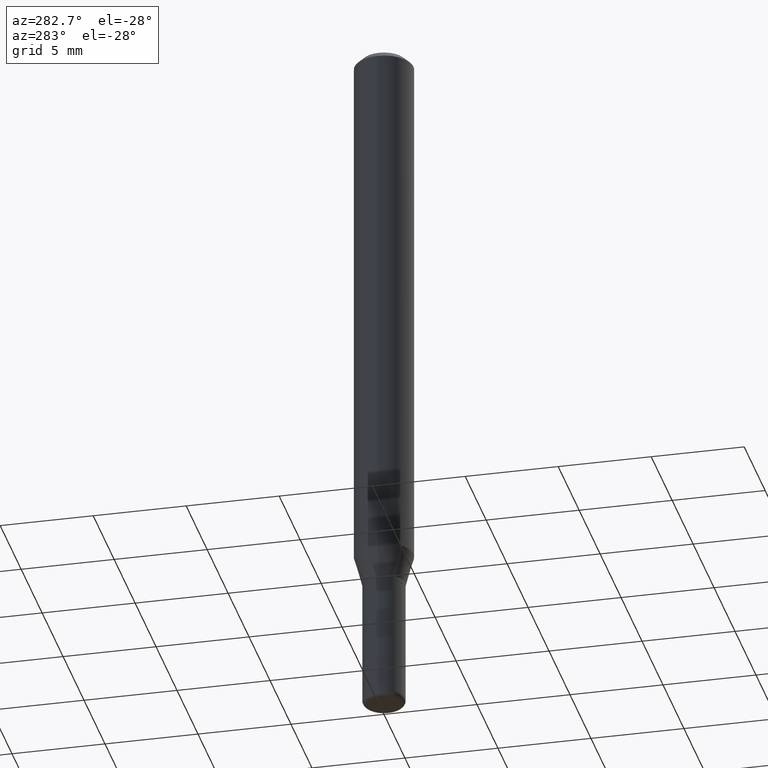
[diagram: clean part render]
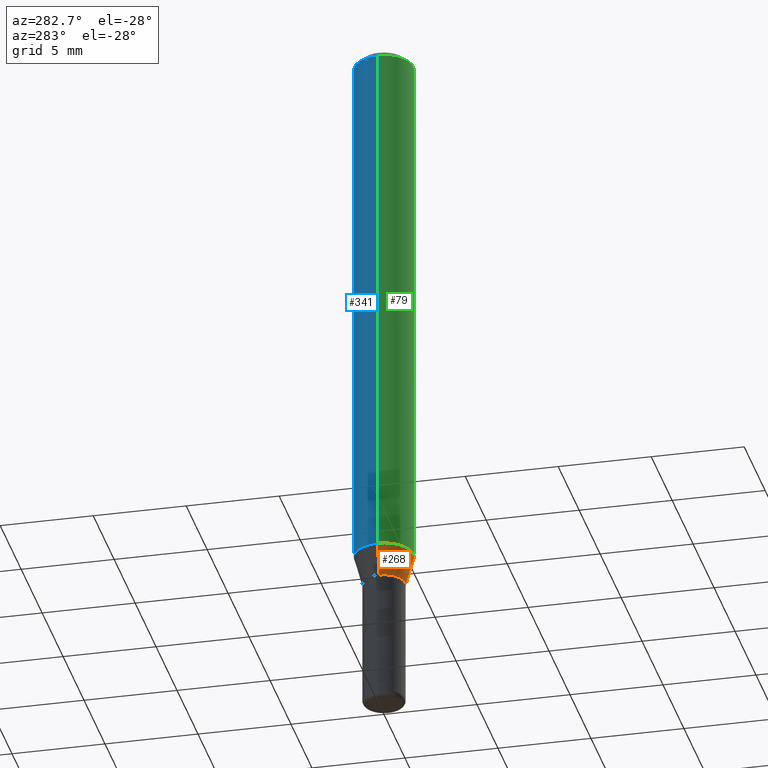
[diagram: same view with three faces highlighted in distinct colors, each labeled with its STEP entity id]
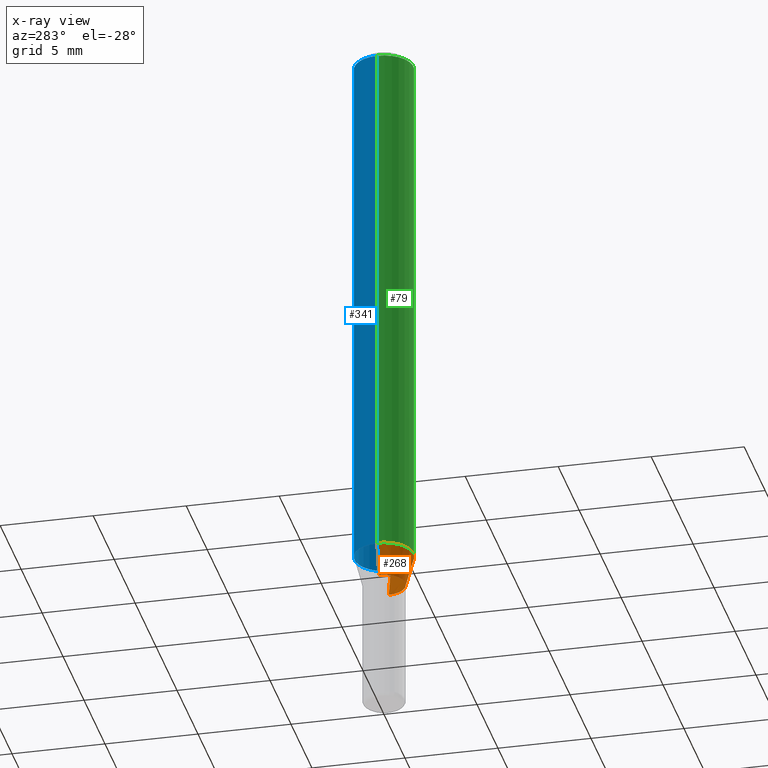
[diagram: x-ray of the same camera — body ghosted, the three highlighted faces saturated]
A machine part, auxiliary view with three faces highlighted in distinct colors.
The next image is the same camera in x-ray (body ghosted, the three faces saturated) — at least one of them is partly hidden behind the body in this view.
Their STEP definitions:

[orange] entity #268 — the highlighted conical surface has half-angle 15 deg.
#2 = ORIENTED_EDGE ( 'NONE', *, *, #108, .F. ) ;
#21 = EDGE_CURVE ( 'NONE', #216, #333, #379, .T. ) ;
#29 = CONICAL_SURFACE ( 'NONE', #366, 0.04499999999999995670, 0.2617993877991494633 ) ;
#35 = VERTEX_POINT ( 'NONE', #104 ) ;
#36 = CARTESIAN_POINT ( 'NONE',  ( 2.983471943545866670E-29, -4.259607233388637524E-15, -1.220000000000000195 ) ) ;
#54 = ORIENTED_EDGE ( 'NONE', *, *, #248, .F. ) ;
#80 = CARTESIAN_POINT ( 'NONE',  ( 0.04499999999999995670, -4.573840553884519999E-15, -1.220000000000000195 ) ) ;
#104 = CARTESIAN_POINT ( 'NONE',  ( -0.04499999999999995670, -3.763674637602973398E-15, -1.220000000000000195 ) ) ;
#108 = EDGE_CURVE ( 'NONE', #35, #353, #238, .T. ) ;
#111 = CARTESIAN_POINT ( 'NONE',  ( 2.823756201468231071E-29, -4.031575482759415678E-15, -1.154689110867544555 ) ) ;
#142 = VECTOR ( 'NONE', #438, 39.37007874015748854 ) ;
#150 = DIRECTION ( 'NONE',  ( 0.2588190451025207395, 1.565188264969626109E-15, 0.9659258262890682012 ) ) ;
#197 = DIRECTION ( 'NONE',  ( -2.445468806185136597E-29, 3.491481338843145583E-15, 1.000000000000000000 ) ) ;
#203 = DIRECTION ( 'NONE',  ( 1.000000000000000000, -6.982962677686275388E-15, 0.000000000000000000 ) ) ;
#216 = VERTEX_POINT ( 'NONE', #80 ) ;
#233 = DIRECTION ( 'NONE',  ( 1.000000000000000000, -6.982962677686270655E-15, 0.000000000000000000 ) ) ;
#238 = LINE ( 'NONE', #323, #142 ) ;
#246 = EDGE_CURVE ( 'NONE', #35, #216, #316, .T. ) ;
#248 = EDGE_CURVE ( 'NONE', #353, #333, #358, .T. ) ;
#265 = ORIENTED_EDGE ( 'NONE', *, *, #21, .T. ) ;
#268 = ADVANCED_FACE ( 'NONE', ( #399 ), #29, .T. ) ;
#275 = DIRECTION ( 'NONE',  ( -2.445468806185136597E-29, 3.491481338843145583E-15, 1.000000000000000000 ) ) ;
#315 = DIRECTION ( 'NONE',  ( -2.445468806185136597E-29, 3.491481338843145583E-15, 1.000000000000000000 ) ) ;
#316 = CIRCLE ( 'NONE', #494, 0.04499999999999995670 ) ;
#321 = VECTOR ( 'NONE', #150, 39.37007874015748854 ) ;
#323 = CARTESIAN_POINT ( 'NONE',  ( -0.04499999999999995670, -3.939863002296592945E-15, -1.220000000000000195 ) ) ;
#326 = CARTESIAN_POINT ( 'NONE',  ( 0.06250000000000000000, -4.468010650114807348E-15, -1.154689110867544555 ) ) ;
#333 = VERTEX_POINT ( 'NONE', #326 ) ;
#353 = VERTEX_POINT ( 'NONE', #449 ) ;
#358 = CIRCLE ( 'NONE', #413, 0.06250000000000000000 ) ;
#366 = AXIS2_PLACEMENT_3D ( 'NONE', #36, #197, #203 ) ;
#376 = EDGE_LOOP ( 'NONE', ( #2, #479, #265, #54 ) ) ;
#379 = LINE ( 'NONE', #427, #321 ) ;
#399 = FACE_OUTER_BOUND ( 'NONE', #376, .T. ) ;
#401 = DIRECTION ( 'NONE',  ( 1.000000000000000000, -6.982962677686275388E-15, 0.000000000000000000 ) ) ;
#413 = AXIS2_PLACEMENT_3D ( 'NONE', #111, #275, #233 ) ;
#427 = CARTESIAN_POINT ( 'NONE',  ( 0.04499999999999995670, -4.573840553884519999E-15, -1.220000000000000195 ) ) ;
#438 = DIRECTION ( 'NONE',  ( -0.2588190451025207395, 5.211531920934546309E-15, 0.9659258262890682012 ) ) ;
#449 = CARTESIAN_POINT ( 'NONE',  ( -0.06250000000000000000, -3.587486272909353851E-15, -1.154689110867544555 ) ) ;
#473 = CARTESIAN_POINT ( 'NONE',  ( 2.983471943545866670E-29, -4.259607233388637524E-15, -1.220000000000000195 ) ) ;
#479 = ORIENTED_EDGE ( 'NONE', *, *, #246, .T. ) ;
#494 = AXIS2_PLACEMENT_3D ( 'NONE', #473, #315, #401 ) ;

[blue] entity #341 — the highlighted cylindrical surface (edge-blend (fillet) strip) has radius 1.5875 mm, axis along (-0, 0, 1).
#16 = ORIENTED_EDGE ( 'NONE', *, *, #435, .F. ) ;
#31 = LINE ( 'NONE', #155, #181 ) ;
#40 = AXIS2_PLACEMENT_3D ( 'NONE', #516, #208, #135 ) ;
#45 = ORIENTED_EDGE ( 'NONE', *, *, #335, .T. ) ;
#47 = CARTESIAN_POINT ( 'NONE',  ( 0.06250000000000000000, -4.888073874380378612E-16, -0.01499999999999970281 ) ) ;
#50 = AXIS2_PLACEMENT_3D ( 'NONE', #517, #332, #170 ) ;
#58 = ORIENTED_EDGE ( 'NONE', *, *, #312, .T. ) ;
#59 = CIRCLE ( 'NONE', #40, 0.06250000000000000000 ) ;
#72 = VERTEX_POINT ( 'NONE', #101 ) ;
#84 = FACE_OUTER_BOUND ( 'NONE', #309, .T. ) ;
#85 = LINE ( 'NONE', #417, #144 ) ;
#89 = CARTESIAN_POINT ( 'NONE',  ( 3.668203209277632395E-31, -5.237222008264614861E-17, -0.01499999999999970281 ) ) ;
#92 = DIRECTION ( 'NONE',  ( -2.445468806185136877E-29, 3.491481338843145188E-15, 1.000000000000000000 ) ) ;
#101 = CARTESIAN_POINT ( 'NONE',  ( -0.06250000000000000000, -1.597884641570968368E-15, -0.01499999999999970281 ) ) ;
#106 = AXIS2_PLACEMENT_3D ( 'NONE', #89, #415, #296 ) ;
#124 = EDGE_CURVE ( 'NONE', #333, #310, #31, .T. ) ;
#125 = CYLINDRICAL_SURFACE ( 'NONE', #50, 0.06250000000000000000 ) ;
#135 = DIRECTION ( 'NONE',  ( 1.000000000000000000, -6.982962677686270655E-15, 0.000000000000000000 ) ) ;
#144 = VECTOR ( 'NONE', #92, 39.37007874015748143 ) ;
#155 = CARTESIAN_POINT ( 'NONE',  ( 0.06250000000000000000, -4.364351673553916694E-16, 3.047610484872459871E-30 ) ) ;
#170 = DIRECTION ( 'NONE',  ( 1.000000000000000000, -6.982962677686266711E-15, 4.876176775795935793E-29 ) ) ;
#179 = ORIENTED_EDGE ( 'NONE', *, *, #124, .F. ) ;
#181 = VECTOR ( 'NONE', #439, 39.37007874015748143 ) ;
#208 = DIRECTION ( 'NONE',  ( -2.445468806185136597E-29, 3.491481338843145583E-15, 1.000000000000000000 ) ) ;
#296 = DIRECTION ( 'NONE',  ( 1.000000000000000000, -6.982962677686266711E-15, 0.000000000000000000 ) ) ;
#303 = CIRCLE ( 'NONE', #106, 0.06250000000000000000 ) ;
#309 = EDGE_LOOP ( 'NONE', ( #45, #58, #16, #179 ) ) ;
#310 = VERTEX_POINT ( 'NONE', #47 ) ;
#312 = EDGE_CURVE ( 'NONE', #353, #72, #85, .T. ) ;
#326 = CARTESIAN_POINT ( 'NONE',  ( 0.06250000000000000000, -4.468010650114807348E-15, -1.154689110867544555 ) ) ;
#332 = DIRECTION ( 'NONE',  ( -2.445468806185136597E-29, 3.491481338843145583E-15, 1.000000000000000000 ) ) ;
#333 = VERTEX_POINT ( 'NONE', #326 ) ;
#335 = EDGE_CURVE ( 'NONE', #333, #353, #59, .T. ) ;
#341 = ADVANCED_FACE ( 'NONE', ( #84 ), #125, .T. ) ;
#353 = VERTEX_POINT ( 'NONE', #449 ) ;
#415 = DIRECTION ( 'NONE',  ( -2.445468806185136597E-29, 3.491481338843145583E-15, 1.000000000000000000 ) ) ;
#417 = CARTESIAN_POINT ( 'NONE',  ( -0.06250000000000000000, 4.440892098500626162E-16, -3.074334431409316114E-30 ) ) ;
#435 = EDGE_CURVE ( 'NONE', #310, #72, #303, .T. ) ;
#439 = DIRECTION ( 'NONE',  ( -2.445468806185136877E-29, 3.491481338843145188E-15, 1.000000000000000000 ) ) ;
#449 = CARTESIAN_POINT ( 'NONE',  ( -0.06250000000000000000, -3.587486272909353851E-15, -1.154689110867544555 ) ) ;
#516 = CARTESIAN_POINT ( 'NONE',  ( 2.823756201468231071E-29, -4.031575482759415678E-15, -1.154689110867544555 ) ) ;
#517 = CARTESIAN_POINT ( 'NONE',  ( 0.000000000000000000, 0.000000000000000000, 0.000000000000000000 ) ) ;

[green] entity #79 — the highlighted cylindrical surface (edge-blend (fillet) strip) has radius 1.5875 mm, axis along (-0, 0, 1).
#31 = LINE ( 'NONE', #155, #181 ) ;
#33 = EDGE_CURVE ( 'NONE', #72, #310, #420, .T. ) ;
#47 = CARTESIAN_POINT ( 'NONE',  ( 0.06250000000000000000, -4.888073874380378612E-16, -0.01499999999999970281 ) ) ;
#72 = VERTEX_POINT ( 'NONE', #101 ) ;
#79 = ADVANCED_FACE ( 'NONE', ( #467 ), #468, .T. ) ;
#85 = LINE ( 'NONE', #417, #144 ) ;
#92 = DIRECTION ( 'NONE',  ( -2.445468806185136877E-29, 3.491481338843145188E-15, 1.000000000000000000 ) ) ;
#100 = ORIENTED_EDGE ( 'NONE', *, *, #312, .F. ) ;
#101 = CARTESIAN_POINT ( 'NONE',  ( -0.06250000000000000000, -1.597884641570968368E-15, -0.01499999999999970281 ) ) ;
#111 = CARTESIAN_POINT ( 'NONE',  ( 2.823756201468231071E-29, -4.031575482759415678E-15, -1.154689110867544555 ) ) ;
#124 = EDGE_CURVE ( 'NONE', #333, #310, #31, .T. ) ;
#144 = VECTOR ( 'NONE', #92, 39.37007874015748143 ) ;
#155 = CARTESIAN_POINT ( 'NONE',  ( 0.06250000000000000000, -4.364351673553916694E-16, 3.047610484872459871E-30 ) ) ;
#181 = VECTOR ( 'NONE', #439, 39.37007874015748143 ) ;
#185 = ORIENTED_EDGE ( 'NONE', *, *, #33, .F. ) ;
#233 = DIRECTION ( 'NONE',  ( 1.000000000000000000, -6.982962677686270655E-15, 0.000000000000000000 ) ) ;
#236 = AXIS2_PLACEMENT_3D ( 'NONE', #448, #249, #414 ) ;
#248 = EDGE_CURVE ( 'NONE', #353, #333, #358, .T. ) ;
#249 = DIRECTION ( 'NONE',  ( -2.445468806185136597E-29, 3.491481338843145583E-15, 1.000000000000000000 ) ) ;
#275 = DIRECTION ( 'NONE',  ( -2.445468806185136597E-29, 3.491481338843145583E-15, 1.000000000000000000 ) ) ;
#279 = ORIENTED_EDGE ( 'NONE', *, *, #124, .T. ) ;
#310 = VERTEX_POINT ( 'NONE', #47 ) ;
#312 = EDGE_CURVE ( 'NONE', #353, #72, #85, .T. ) ;
#326 = CARTESIAN_POINT ( 'NONE',  ( 0.06250000000000000000, -4.468010650114807348E-15, -1.154689110867544555 ) ) ;
#333 = VERTEX_POINT ( 'NONE', #326 ) ;
#336 = CARTESIAN_POINT ( 'NONE',  ( 3.668203209277632395E-31, -5.237222008264614861E-17, -0.01499999999999970281 ) ) ;
#353 = VERTEX_POINT ( 'NONE', #449 ) ;
#358 = CIRCLE ( 'NONE', #413, 0.06250000000000000000 ) ;
#412 = ORIENTED_EDGE ( 'NONE', *, *, #248, .T. ) ;
#413 = AXIS2_PLACEMENT_3D ( 'NONE', #111, #275, #233 ) ;
#414 = DIRECTION ( 'NONE',  ( 1.000000000000000000, -6.982962677686266711E-15, 4.876176775795935793E-29 ) ) ;
#417 = CARTESIAN_POINT ( 'NONE',  ( -0.06250000000000000000, 4.440892098500626162E-16, -3.074334431409316114E-30 ) ) ;
#420 = CIRCLE ( 'NONE', #513, 0.06250000000000000000 ) ;
#424 = DIRECTION ( 'NONE',  ( 1.000000000000000000, -6.982962677686266711E-15, 0.000000000000000000 ) ) ;
#439 = DIRECTION ( 'NONE',  ( -2.445468806185136877E-29, 3.491481338843145188E-15, 1.000000000000000000 ) ) ;
#448 = CARTESIAN_POINT ( 'NONE',  ( 0.000000000000000000, 0.000000000000000000, 0.000000000000000000 ) ) ;
#449 = CARTESIAN_POINT ( 'NONE',  ( -0.06250000000000000000, -3.587486272909353851E-15, -1.154689110867544555 ) ) ;
#458 = EDGE_LOOP ( 'NONE', ( #100, #412, #279, #185 ) ) ;
#467 = FACE_OUTER_BOUND ( 'NONE', #458, .T. ) ;
#468 = CYLINDRICAL_SURFACE ( 'NONE', #236, 0.06250000000000000000 ) ;
#501 = DIRECTION ( 'NONE',  ( -2.445468806185136597E-29, 3.491481338843145583E-15, 1.000000000000000000 ) ) ;
#513 = AXIS2_PLACEMENT_3D ( 'NONE', #336, #501, #424 ) ;